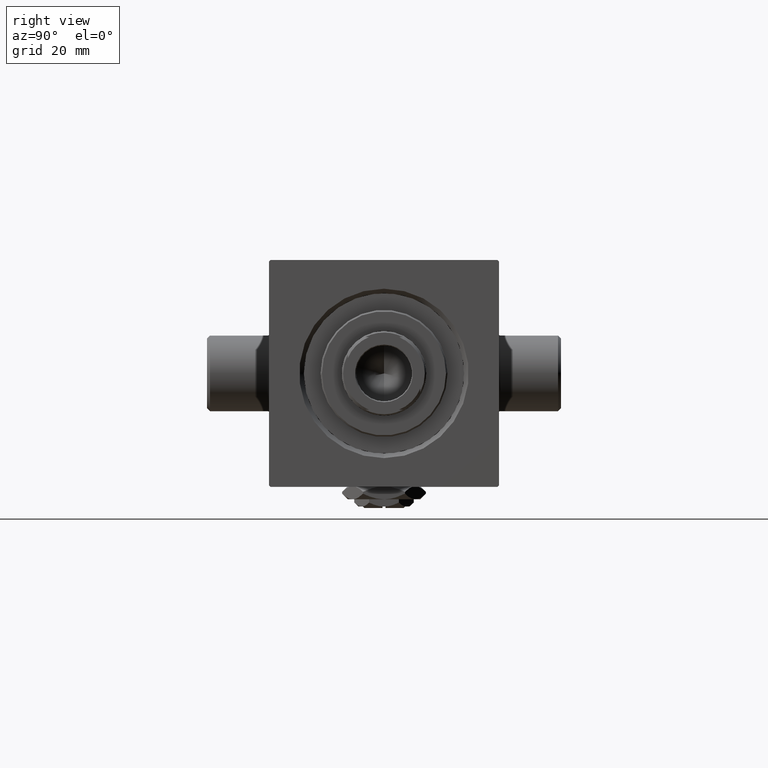
[diagram: clean part render]
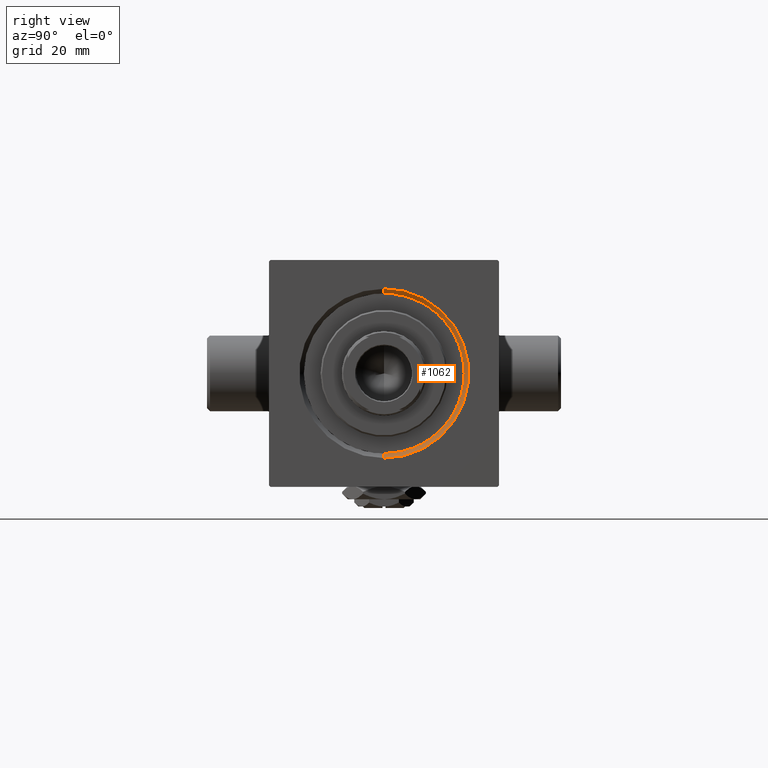
[diagram: same view with one face highlighted and labeled with its STEP entity id]
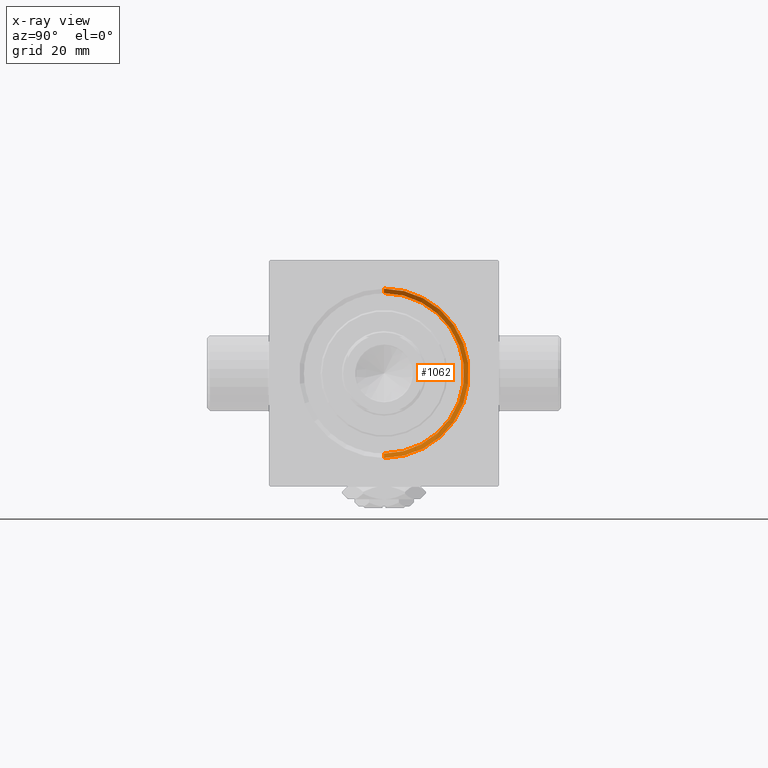
[diagram: x-ray of the same camera — body ghosted, the highlighted face saturated]
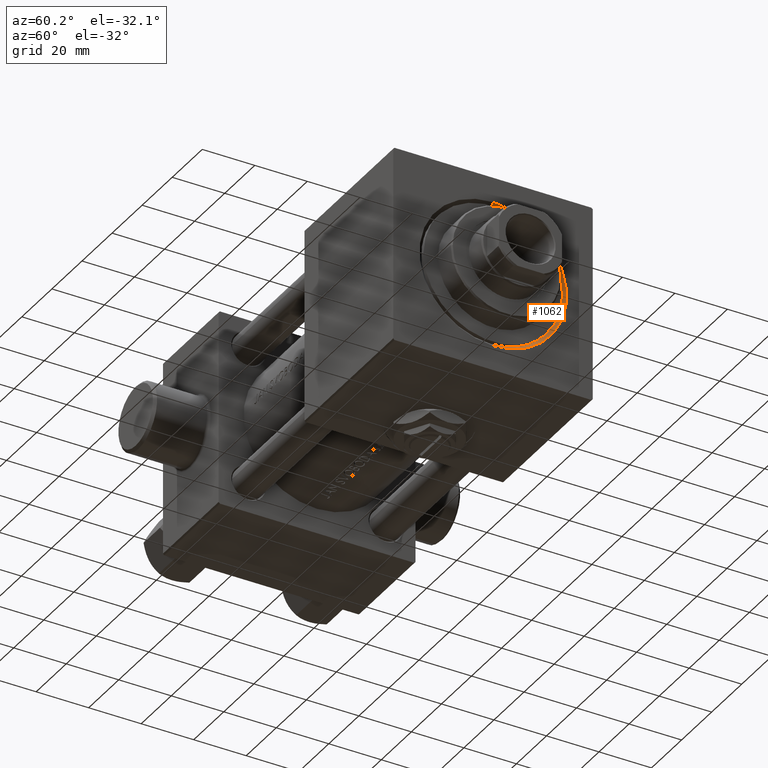
[diagram: same view with one face highlighted and labeled with its STEP entity id]
A machine part, right view. The second image highlights one B-rep face of the part: STEP entity #1062.
The next image is the same camera in x-ray: the body ghosted, the highlighted face saturated — about 0% of this face is hidden behind the body in this view.
A second angle (auxiliary view) of the same face is appended — the face is thin or edge-on in the first view.
In plain terms, the highlighted conical surface has half-angle 45 deg.
Its self-contained STEP definition (entity closure, byte-faithful):
#386 = VERTEX_POINT ( 'NONE', #14780 ) ;
#1062 = ADVANCED_FACE ( 'NONE', ( #23432 ), #22374, .F. ) ;
#1312 = DIRECTION ( 'NONE',  ( -1.000000000000000000, -0.000000000000000000, 0.000000000000000000 ) ) ;
#4668 = VERTEX_POINT ( 'NONE', #36666 ) ;
#5139 = AXIS2_PLACEMENT_3D ( 'NONE', #27608, #23676, #34733 ) ;
#7956 = CARTESIAN_POINT ( 'NONE',  ( 154.0000000000000000, 0.000000000000000000, 0.000000000000000000 ) ) ;
#8474 = VECTOR ( 'NONE', #44298, 1000.000000000000114 ) ;
#8541 = DIRECTION ( 'NONE',  ( 1.000000000000000000, 0.000000000000000000, 0.000000000000000000 ) ) ;
#9312 = CARTESIAN_POINT ( 'NONE',  ( 154.0000000000000000, 0.000000000000000000, -27.99999999999994316 ) ) ;
#10473 = ORIENTED_EDGE ( 'NONE', *, *, #40607, .T. ) ;
#12876 = CARTESIAN_POINT ( 'NONE',  ( 152.5000000000000568, 3.245314017740486554E-15, 26.50000000000000355 ) ) ;
#13150 = VERTEX_POINT ( 'NONE', #37995 ) ;
#13363 = DIRECTION ( 'NONE',  ( 0.7071067811865491270, 8.659560562354911904E-17, 0.7071067811865459074 ) ) ;
#14036 = VECTOR ( 'NONE', #13363, 1000.000000000000114 ) ;
#14780 = CARTESIAN_POINT ( 'NONE',  ( 152.5000000000000568, 0.000000000000000000, -26.50000000000000355 ) ) ;
#15174 = ORIENTED_EDGE ( 'NONE', *, *, #16609, .F. ) ;
#16609 = EDGE_CURVE ( 'NONE', #386, #13150, #42417, .T. ) ;
#22374 = CONICAL_SURFACE ( 'NONE', #5139, 26.50000000000000355, 0.7853981633974459475 ) ;
#22510 = ORIENTED_EDGE ( 'NONE', *, *, #46967, .F. ) ;
#23432 = FACE_OUTER_BOUND ( 'NONE', #41069, .T. ) ;
#23676 = DIRECTION ( 'NONE',  ( 1.000000000000000000, 0.000000000000000000, 0.000000000000000000 ) ) ;
#27608 = CARTESIAN_POINT ( 'NONE',  ( 152.5000000000000568, 0.000000000000000000, 0.000000000000000000 ) ) ;
#30839 = CARTESIAN_POINT ( 'NONE',  ( 152.5000000000000568, 0.000000000000000000, 0.000000000000000000 ) ) ;
#34302 = ORIENTED_EDGE ( 'NONE', *, *, #44435, .F. ) ;
#34733 = DIRECTION ( 'NONE',  ( 0.000000000000000000, 0.000000000000000000, -1.000000000000000000 ) ) ;
#34756 = DIRECTION ( 'NONE',  ( 0.000000000000000000, 0.000000000000000000, 1.000000000000000000 ) ) ;
#36666 = CARTESIAN_POINT ( 'NONE',  ( 154.0000000000000000, 3.429011037612582176E-15, 27.99999999999994316 ) ) ;
#37154 = CARTESIAN_POINT ( 'NONE',  ( 152.5000000000000568, 0.000000000000000000, -26.50000000000000355 ) ) ;
#37443 = AXIS2_PLACEMENT_3D ( 'NONE', #7956, #1312, #37847 ) ;
#37847 = DIRECTION ( 'NONE',  ( 0.000000000000000000, 0.000000000000000000, 1.000000000000000000 ) ) ;
#37995 = CARTESIAN_POINT ( 'NONE',  ( 152.5000000000000568, 3.245314017740486554E-15, 26.50000000000000355 ) ) ;
#38862 = LINE ( 'NONE', #12876, #14036 ) ;
#39120 = VERTEX_POINT ( 'NONE', #9312 ) ;
#39951 = AXIS2_PLACEMENT_3D ( 'NONE', #30839, #8541, #34756 ) ;
#40607 = EDGE_CURVE ( 'NONE', #386, #39120, #47978, .T. ) ;
#41069 = EDGE_LOOP ( 'NONE', ( #22510, #15174, #10473, #34302 ) ) ;
#42162 = CIRCLE ( 'NONE', #37443, 27.99999999999994316 ) ;
#42417 = CIRCLE ( 'NONE', #39951, 26.50000000000000355 ) ;
#44298 = DIRECTION ( 'NONE',  ( 0.7071067811865491270, 0.000000000000000000, -0.7071067811865459074 ) ) ;
#44435 = EDGE_CURVE ( 'NONE', #4668, #39120, #42162, .T. ) ;
#46967 = EDGE_CURVE ( 'NONE', #13150, #4668, #38862, .T. ) ;
#47978 = LINE ( 'NONE', #37154, #8474 ) ;